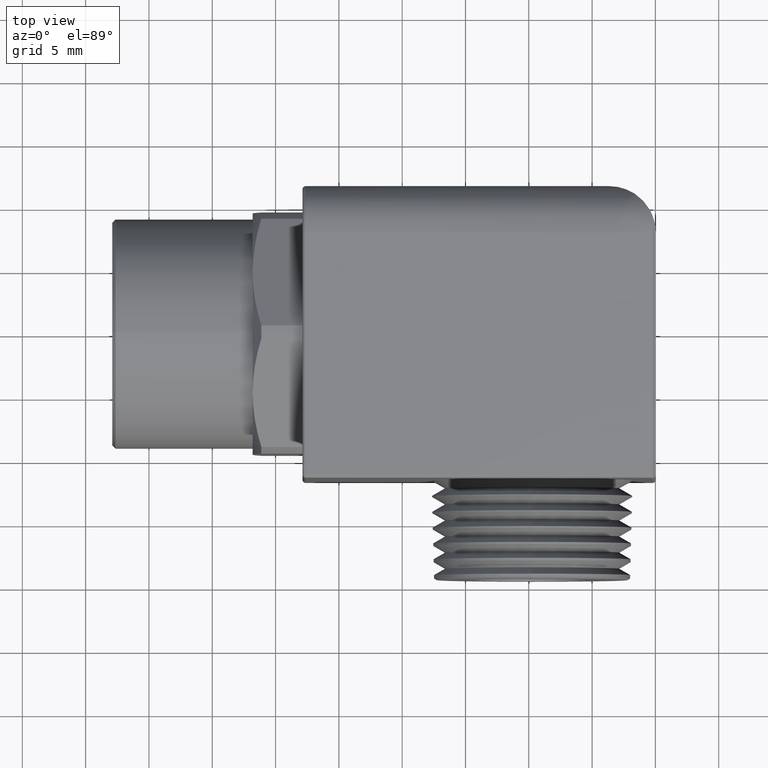
[diagram: clean part render]
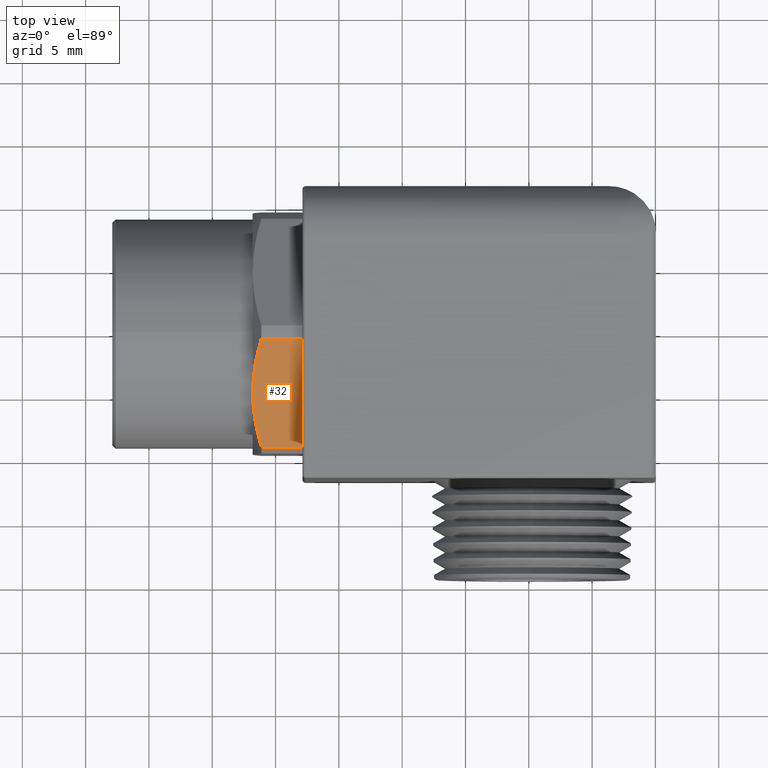
[diagram: same view with one face highlighted and labeled with its STEP entity id]
A machine part, top view. The second image highlights one B-rep face of the part: STEP entity #32.
In plain terms, the highlighted planar face has unit normal (0, 0.5, -0.866).
Its self-contained STEP definition (entity closure, byte-faithful):
#17 = EDGE_LOOP ( 'NONE', ( #31, #27, #30, #24, #26 ) ) ;
#24 = ORIENTED_EDGE ( 'NONE', *, *, #136, .T. ) ;
#25 = EDGE_CURVE ( 'NONE', #3531, #134, #1108, .T. ) ;
#26 = ORIENTED_EDGE ( 'NONE', *, *, #25, .F. ) ;
#27 = ORIENTED_EDGE ( 'NONE', *, *, #3535, .F. ) ;
#28 = EDGE_CURVE ( 'NONE', #3501, #3531, #1099, .T. ) ;
#29 = EDGE_CURVE ( 'NONE', #3490, #76, #1098, .T. ) ;
#30 = ORIENTED_EDGE ( 'NONE', *, *, #29, .T. ) ;
#31 = ORIENTED_EDGE ( 'NONE', *, *, #28, .F. ) ;
#32 = ADVANCED_FACE ( 'NONE', ( #1088 ), #1087, .F. ) ;
#76 = VERTEX_POINT ( 'NONE', #1240 ) ;
#134 = VERTEX_POINT ( 'NONE', #1331 ) ;
#136 = EDGE_CURVE ( 'NONE', #76, #134, #1388, .T. ) ;
#1087 = PLANE ( 'NONE',  #1144 ) ;
#1088 = FACE_OUTER_BOUND ( 'NONE', #17, .T. ) ;
#1089 = DIRECTION ( 'NONE',  ( 0.0000000000000000000, 0.8660254037844386000, 0.5000000000000000000 ) ) ;
#1090 = VECTOR ( 'NONE', #1089, 39.37007874015748100 ) ;
#1091 = CARTESIAN_POINT ( 'NONE',  ( -0.4649999999999998000, -0.1875000000000000800, 0.3247595264191646700 ) ) ;
#1092 = CARTESIAN_POINT ( 'NONE',  ( -0.4649999999999999100, -0.2158471228217850900, 0.3083933074272555700 ) ) ;
#1093 = CARTESIAN_POINT ( 'NONE',  ( -0.4624919805492597700, -0.2439435198056842700, 0.2921718450653427200 ) ) ;
#1094 = CARTESIAN_POINT ( 'NONE',  ( -0.4531496724632070300, -0.2997038181379715900, 0.2599786218131028800 ) ) ;
#1095 = CARTESIAN_POINT ( 'NONE',  ( -0.4463378435404651800, -0.3273699647760646700, 0.2440055646041600100 ) ) ;
#1096 = CARTESIAN_POINT ( 'NONE',  ( -0.4379367061317361900, -0.3548772287939731000, 0.2281242383187505300 ) ) ;
#1097 = CARTESIAN_POINT ( 'NONE',  ( -0.3100000000000000000, -0.02012277120602691900, 0.4213948145195784400 ) ) ;
#1098 = LINE ( 'NONE', #1097, #1090 ) ;
#1099 = B_SPLINE_CURVE_WITH_KNOTS ( 'NONE', 3,
 ( #1096, #1095, #1094, #1093, #1092, #1091 ),
 .UNSPECIFIED., .F., .F.,
 ( 4, 2, 4 ),
 ( 2.364213876264559000E-007, 0.002477994463572436800, 0.004955752505757247600 ),
 .UNSPECIFIED. ) ;
#1100 = CARTESIAN_POINT ( 'NONE',  ( -0.4379367061317362400, -0.02012277120602676300, 0.4213948145195784400 ) ) ;
#1101 = CARTESIAN_POINT ( 'NONE',  ( -0.4463001386843549700, -0.04750658081759554000, 0.4055847646689019200 ) ) ;
#1102 = CARTESIAN_POINT ( 'NONE',  ( -0.4531104135154324600, -0.07511112263901342800, 0.3896472750174499500 ) ) ;
#1103 = CARTESIAN_POINT ( 'NONE',  ( -0.4601361740916120000, -0.1169712433978139800, 0.3654793230290462300 ) ) ;
#1104 = CARTESIAN_POINT ( 'NONE',  ( -0.4619460537740370800, -0.1310002297024751800, 0.3573796840095924100 ) ) ;
#1105 = CARTESIAN_POINT ( 'NONE',  ( -0.4643814054869567800, -0.1592265283708624900, 0.3410832228751723400 ) ) ;
#1106 = CARTESIAN_POINT ( 'NONE',  ( -0.4649999999999999100, -0.1734181401065060000, 0.3328896920193639100 ) ) ;
#1107 = CARTESIAN_POINT ( 'NONE',  ( -0.4649999999999998000, -0.1875000000000000800, 0.3247595264191646700 ) ) ;
#1108 = B_SPLINE_CURVE_WITH_KNOTS ( 'NONE', 3,
 ( #1107, #1106, #1105, #1104, #1103, #1102, #1101, #1100 ),
 .UNSPECIFIED., .F., .F.,
 ( 4, 2, 2, 4 ),
 ( 0.004955752505757247600, 0.006186616104133092600, 0.007417479702508937600, 0.009879206899260629300 ),
 .UNSPECIFIED. ) ;
#1141 = DIRECTION ( 'NONE',  ( 0.0000000000000000000, 0.8660254037844386000, 0.5000000000000000000 ) ) ;
#1142 = DIRECTION ( 'NONE',  ( 0.0000000000000000000, 0.5000000000000001100, -0.8660254037844387100 ) ) ;
#1143 = CARTESIAN_POINT ( 'NONE',  ( 0.8951751201848218200, -0.02012277120602691900, 0.4213948145195784400 ) ) ;
#1144 = AXIS2_PLACEMENT_3D ( 'NONE', #1143, #1142, #1141 ) ;
#1240 = CARTESIAN_POINT ( 'NONE',  ( -0.3100000000000000000, -0.02012277120602675900, 0.4213948145195785500 ) ) ;
#1331 = CARTESIAN_POINT ( 'NONE',  ( -0.4379367061317362400, -0.02012277120602676300, 0.4213948145195784400 ) ) ;
#1385 = DIRECTION ( 'NONE',  ( -1.000000000000000000, 0.0000000000000000000, 0.0000000000000000000 ) ) ;
#1386 = VECTOR ( 'NONE', #1385, 39.37007874015748100 ) ;
#1387 = CARTESIAN_POINT ( 'NONE',  ( 0.8951751201848218200, -0.02012277120602675900, 0.4213948145195783900 ) ) ;
#1388 = LINE ( 'NONE', #1387, #1386 ) ;
#3206 = CARTESIAN_POINT ( 'NONE',  ( -0.4379367061317361900, -0.3548772287939731000, 0.2281242383187505300 ) ) ;
#3218 = CARTESIAN_POINT ( 'NONE',  ( -0.3100000000000000000, -0.3548772287939730400, 0.2281242383187505100 ) ) ;
#3220 = CARTESIAN_POINT ( 'NONE',  ( -0.4649999999999998000, -0.1875000000000000800, 0.3247595264191646700 ) ) ;
#3276 = DIRECTION ( 'NONE',  ( -1.000000000000000000, 0.0000000000000000000, 0.0000000000000000000 ) ) ;
#3277 = VECTOR ( 'NONE', #3276, 39.37007874015748100 ) ;
#3278 = CARTESIAN_POINT ( 'NONE',  ( 0.8951751201848218200, -0.3548772287939731000, 0.2281242383187505300 ) ) ;
#3279 = LINE ( 'NONE', #3278, #3277 ) ;
#3490 = VERTEX_POINT ( 'NONE', #3218 ) ;
#3501 = VERTEX_POINT ( 'NONE', #3206 ) ;
#3531 = VERTEX_POINT ( 'NONE', #3220 ) ;
#3535 = EDGE_CURVE ( 'NONE', #3490, #3501, #3279, .T. ) ;